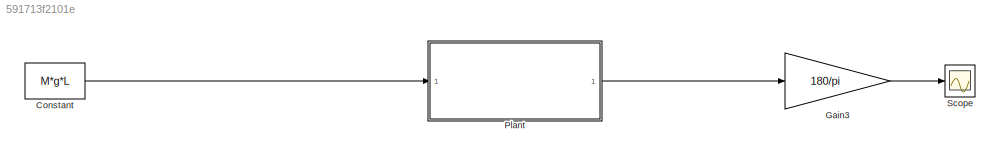
MODEL slx_591713f2101e
KIND model
CONFIG AbsTol = auto
CONFIG EnableMultiTasking = off
CONFIG FixedStep = 0.001
CONFIG MaxStep = auto
CONFIG MinStep = auto
CONFIG RelTol = 1e-3
CONFIG SampleTimeConstraint = Unconstrained
CONFIG Solver = FixedStepAuto
CONFIG SolverName = FixedStepAuto
CONFIG StartTime = 0.0
CONFIG StopTime = 10
WORKSPACE source: MAT-file member
WORKSPACE J = 2
BLOCK [Constant] Constant
  Value = M*g*L
BLOCK [Gain] Gain3
  Gain = 180/pi
  OutDataTypeStr = Inherit: Inherit via internal rule
  ParamDataTypeStr = Inherit: Inherit via internal rule
  SaturateOnIntegerOverflow = off
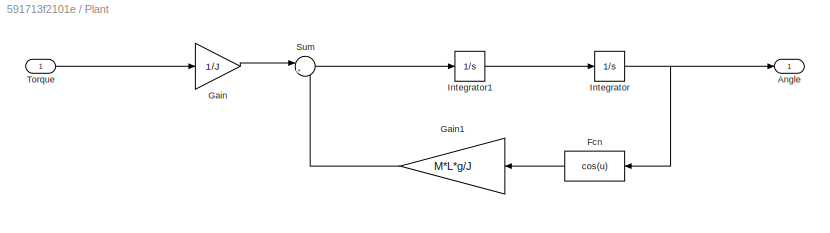
BLOCK [SubSystem] Plant
  Ports = [1, 1]
  RequestExecContextInheritance = off
BLOCK [Outport] Plant/Angle
  IconDisplay = Port number
BLOCK [Fcn] Plant/Fcn
  Expr = cos(u)
BLOCK [Gain] Plant/Gain
  Gain = 1/J
  OutDataTypeStr = Inherit: Inherit via internal rule
  ParamDataTypeStr = Inherit: Inherit via internal rule
  SaturateOnIntegerOverflow = off
BLOCK [Gain] Plant/Gain1
  Gain = M*L*g/J
  OutDataTypeStr = Inherit: Inherit via internal rule
  ParamDataTypeStr = Inherit: Inherit via internal rule
  SaturateOnIntegerOverflow = off
BLOCK [Integrator] Plant/Integrator
  Ports = [1, 1]
BLOCK [Integrator] Plant/Integrator1
  Ports = [1, 1]
BLOCK [Sum] Plant/Sum
  IconShape = round
  InputSameDT = off
  Inputs = |+-
  OutDataTypeStr = Inherit: Inherit via internal rule
  Ports = [2, 1]
  SaturateOnIntegerOverflow = off
BLOCK [Inport] Plant/Torque
  IconDisplay = Port number
BLOCK [Scope] Scope
  Floating = off
  NumInputPorts = 1
  Ports = [1]
  ScopeSpecificationString = Simulink.scopes.TimeScopeBlockCfg('CurrentConfiguration', extmgr.ConfigurationSet(extmgr.Configuration('Core','General UI',true),extmgr.Configuration('Core','Source UI',true),extmgr.Configuration('Sources','WiredSimulink',true),extmgr.Configuration('Visuals','Time Domain',true,'SerializedDisplays',{struct('MinYLimReal','-1.00000','MaxYLimReal','1.00000','YLabelReal','','MinYLimMag','0.00000','MaxY...<+1354ch>
LINE Constant:1 -> Plant:1
LINE Gain3:1 -> Scope:1
LINE Plant/Fcn:1 -> Plant/Gain1:1
LINE Plant/Gain1:1 -> Plant/Sum:2
LINE Plant/Gain:1 -> Plant/Sum:1
LINE Plant/Integrator1:1 -> Plant/Integrator:1
NET Plant/Integrator:1 -> Plant/Angle:1, Plant/Fcn:1
LINE Plant/Sum:1 -> Plant/Integrator1:1
LINE Plant/Torque:1 -> Plant/Gain:1
LINE Plant:1 -> Gain3:1
note: NET lines group one-source signal fan-out (src -> all destinations, sorted); 1:1 wires keep LINE
